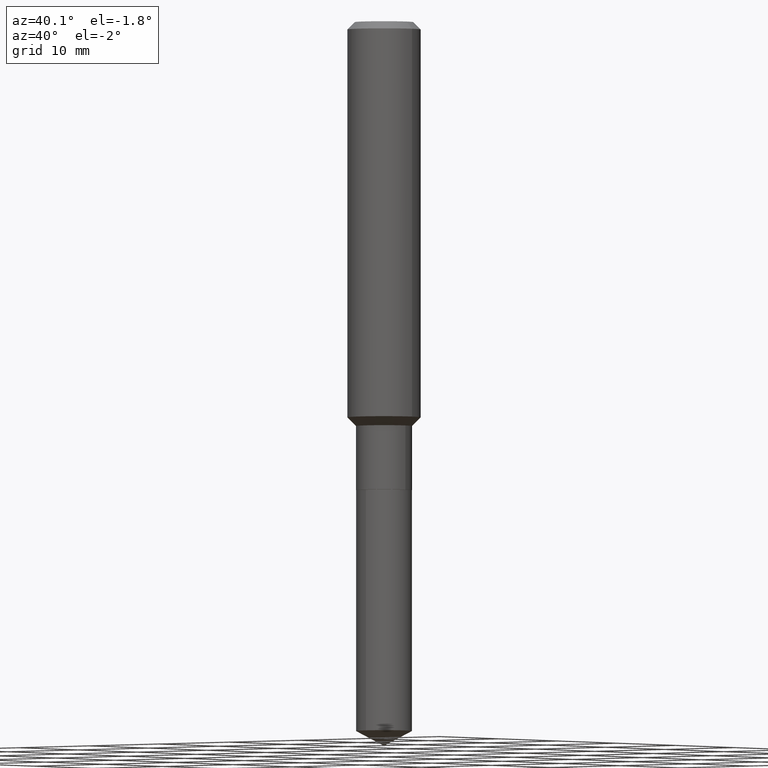
[diagram: clean part render]
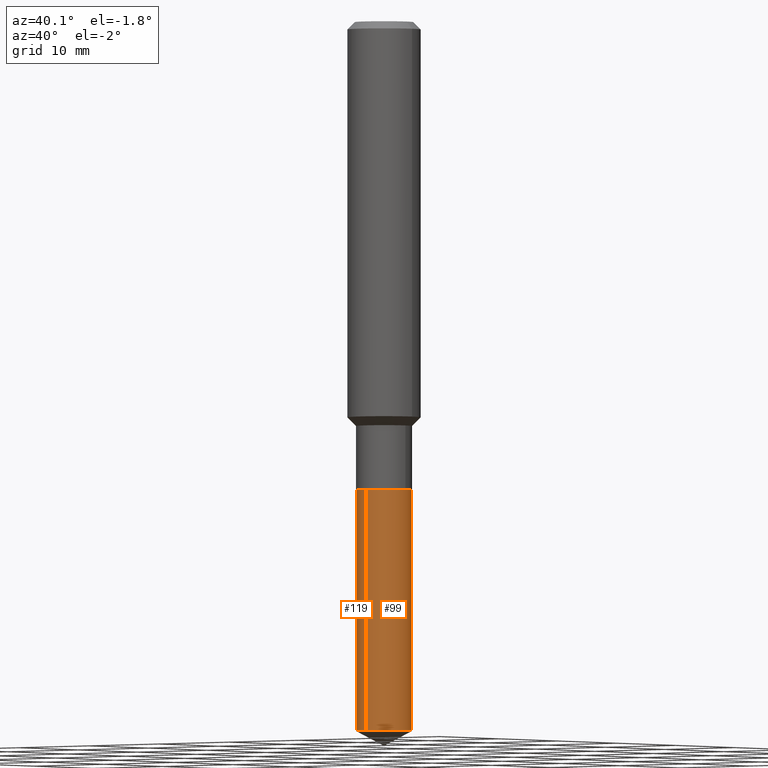
[diagram: same view with one multi-face feature highlighted, each face labeled with its STEP entity id]
A machine part, auxiliary view. The highlighted faces form ONE feature: a constant-radius fillet chain: 2 tangent blend faces with common blend radius 3.0505 mm. The faces share edges in the B-rep.
Their STEP definitions:
[1] entity #99 (Cylinder):
#3 = LINE ( 'NONE', #162, #369 ) ;
#31 = CIRCLE ( 'NONE', #301, 0.1200999999999999984 ) ;
#37 = DIRECTION ( 'NONE',  ( -2.445582076561770869E-29, 3.491319129216855831E-15, 1.000000000000000000 ) ) ;
#47 = ORIENTED_EDGE ( 'NONE', *, *, #134, .T. ) ;
#58 = VERTEX_POINT ( 'NONE', #446 ) ;
#75 = LINE ( 'NONE', #155, #349 ) ;
#81 = EDGE_LOOP ( 'NONE', ( #206, #47, #94, #464 ) ) ;
#88 = EDGE_CURVE ( 'NONE', #58, #282, #169, .T. ) ;
#94 = ORIENTED_EDGE ( 'NONE', *, *, #88, .F. ) ;
#99 = ADVANCED_FACE ( 'NONE', ( #120 ), #234, .T. ) ;
#107 = DIRECTION ( 'NONE',  ( -2.445582076561770869E-29, 3.491319129216855831E-15, 1.000000000000000000 ) ) ;
#120 = FACE_OUTER_BOUND ( 'NONE', #81, .T. ) ;
#134 = EDGE_CURVE ( 'NONE', #428, #282, #75, .T. ) ;
#140 = CARTESIAN_POINT ( 'NONE',  ( 7.449850776551887976E-29, -1.063607737509207381E-14, -3.046341697257457071 ) ) ;
#148 = EDGE_CURVE ( 'NONE', #252, #428, #31, .T. ) ;
#155 = CARTESIAN_POINT ( 'NONE',  ( 8.533618256479295172E-16, 0.1200999999999929901, -2.011800000000000477 ) ) ;
#159 = DIRECTION ( 'NONE',  ( -2.445582076561770869E-29, 3.491319129216855831E-15, 1.000000000000000000 ) ) ;
#162 = CARTESIAN_POINT ( 'NONE',  ( -8.386538175900712832E-16, -0.1201000000000070206, -2.011799999999999589 ) ) ;
#169 = CIRCLE ( 'NONE', #299, 0.1200999999999999984 ) ;
#206 = ORIENTED_EDGE ( 'NONE', *, *, #148, .T. ) ;
#212 = CARTESIAN_POINT ( 'NONE',  ( -8.386538175900460396E-16, -0.1201000000000106288, -3.046341697257456627 ) ) ;
#234 = CYLINDRICAL_SURFACE ( 'NONE', #273, 0.1200999999999999984 ) ;
#252 = VERTEX_POINT ( 'NONE', #212 ) ;
#253 = CARTESIAN_POINT ( 'NONE',  ( 8.533618256479545636E-16, 0.1200999999999893680, -3.046341697257457515 ) ) ;
#254 = DIRECTION ( 'NONE',  ( -6.982962677686265922E-15, -1.000000000000000000, 4.549288915344318469E-15 ) ) ;
#273 = AXIS2_PLACEMENT_3D ( 'NONE', #378, #37, #490 ) ;
#282 = VERTEX_POINT ( 'NONE', #408 ) ;
#299 = AXIS2_PLACEMENT_3D ( 'NONE', #337, #487, #448 ) ;
#301 = AXIS2_PLACEMENT_3D ( 'NONE', #140, #107, #254 ) ;
#337 = CARTESIAN_POINT ( 'NONE',  ( 4.919794144283257815E-29, -7.024162157484641016E-15, -2.011800000000000033 ) ) ;
#340 = EDGE_CURVE ( 'NONE', #252, #58, #3, .T. ) ;
#349 = VECTOR ( 'NONE', #159, 39.37007874015748143 ) ;
#369 = VECTOR ( 'NONE', #420, 39.37007874015748143 ) ;
#378 = CARTESIAN_POINT ( 'NONE',  ( 4.919794144283257815E-29, -7.024162157484641016E-15, -2.011800000000000033 ) ) ;
#408 = CARTESIAN_POINT ( 'NONE',  ( 8.533618256479549580E-16, 0.1200999999999929901, -2.011800000000000477 ) ) ;
#420 = DIRECTION ( 'NONE',  ( -2.445582076561770869E-29, 3.491319129216855831E-15, 1.000000000000000000 ) ) ;
#428 = VERTEX_POINT ( 'NONE', #253 ) ;
#446 = CARTESIAN_POINT ( 'NONE',  ( -8.386538175900712832E-16, -0.1201000000000070206, -2.011799999999999589 ) ) ;
#448 = DIRECTION ( 'NONE',  ( -6.982962677686265922E-15, -1.000000000000000000, 4.549288915344318469E-15 ) ) ;
#464 = ORIENTED_EDGE ( 'NONE', *, *, #340, .F. ) ;
#487 = DIRECTION ( 'NONE',  ( -2.445582076561770869E-29, 3.491319129216855831E-15, 1.000000000000000000 ) ) ;
#490 = DIRECTION ( 'NONE',  ( -6.982962677686265922E-15, -1.000000000000000000, 4.549288915344318469E-15 ) ) ;
[2] entity #119 (Cylinder):
#3 = LINE ( 'NONE', #162, #369 ) ;
#11 = CIRCLE ( 'NONE', #453, 0.1200999999999999984 ) ;
#22 = EDGE_LOOP ( 'NONE', ( #458, #360, #288, #272 ) ) ;
#30 = CARTESIAN_POINT ( 'NONE',  ( 4.919794144283257815E-29, -7.024162157484641016E-15, -2.011800000000000033 ) ) ;
#46 = DIRECTION ( 'NONE',  ( -2.445582076561770869E-29, 3.491319129216855831E-15, 1.000000000000000000 ) ) ;
#55 = CARTESIAN_POINT ( 'NONE',  ( 4.919794144283257815E-29, -7.024162157484641016E-15, -2.011800000000000033 ) ) ;
#58 = VERTEX_POINT ( 'NONE', #446 ) ;
#71 = DIRECTION ( 'NONE',  ( -2.445582076561770869E-29, 3.491319129216855831E-15, 1.000000000000000000 ) ) ;
#75 = LINE ( 'NONE', #155, #349 ) ;
#97 = CARTESIAN_POINT ( 'NONE',  ( 7.449850776551887976E-29, -1.063607737509207381E-14, -3.046341697257457071 ) ) ;
#119 = ADVANCED_FACE ( 'NONE', ( #157 ), #306, .T. ) ;
#134 = EDGE_CURVE ( 'NONE', #428, #282, #75, .T. ) ;
#155 = CARTESIAN_POINT ( 'NONE',  ( 8.533618256479295172E-16, 0.1200999999999929901, -2.011800000000000477 ) ) ;
#157 = FACE_OUTER_BOUND ( 'NONE', #22, .T. ) ;
#159 = DIRECTION ( 'NONE',  ( -2.445582076561770869E-29, 3.491319129216855831E-15, 1.000000000000000000 ) ) ;
#162 = CARTESIAN_POINT ( 'NONE',  ( -8.386538175900712832E-16, -0.1201000000000070206, -2.011799999999999589 ) ) ;
#167 = EDGE_CURVE ( 'NONE', #428, #252, #393, .T. ) ;
#177 = AXIS2_PLACEMENT_3D ( 'NONE', #55, #46, #353 ) ;
#212 = CARTESIAN_POINT ( 'NONE',  ( -8.386538175900460396E-16, -0.1201000000000106288, -3.046341697257456627 ) ) ;
#252 = VERTEX_POINT ( 'NONE', #212 ) ;
#253 = CARTESIAN_POINT ( 'NONE',  ( 8.533618256479545636E-16, 0.1200999999999893680, -3.046341697257457515 ) ) ;
#264 = DIRECTION ( 'NONE',  ( -6.982962677686265922E-15, -1.000000000000000000, 4.549288915344318469E-15 ) ) ;
#272 = ORIENTED_EDGE ( 'NONE', *, *, #459, .F. ) ;
#282 = VERTEX_POINT ( 'NONE', #408 ) ;
#288 = ORIENTED_EDGE ( 'NONE', *, *, #340, .T. ) ;
#306 = CYLINDRICAL_SURFACE ( 'NONE', #177, 0.1200999999999999984 ) ;
#325 = DIRECTION ( 'NONE',  ( -2.445582076561770869E-29, 3.491319129216855831E-15, 1.000000000000000000 ) ) ;
#340 = EDGE_CURVE ( 'NONE', #252, #58, #3, .T. ) ;
#349 = VECTOR ( 'NONE', #159, 39.37007874015748143 ) ;
#353 = DIRECTION ( 'NONE',  ( -6.982962677686265922E-15, -1.000000000000000000, 4.549288915344318469E-15 ) ) ;
#360 = ORIENTED_EDGE ( 'NONE', *, *, #167, .T. ) ;
#369 = VECTOR ( 'NONE', #420, 39.37007874015748143 ) ;
#393 = CIRCLE ( 'NONE', #452, 0.1200999999999999984 ) ;
#408 = CARTESIAN_POINT ( 'NONE',  ( 8.533618256479549580E-16, 0.1200999999999929901, -2.011800000000000477 ) ) ;
#420 = DIRECTION ( 'NONE',  ( -2.445582076561770869E-29, 3.491319129216855831E-15, 1.000000000000000000 ) ) ;
#428 = VERTEX_POINT ( 'NONE', #253 ) ;
#446 = CARTESIAN_POINT ( 'NONE',  ( -8.386538175900712832E-16, -0.1201000000000070206, -2.011799999999999589 ) ) ;
#452 = AXIS2_PLACEMENT_3D ( 'NONE', #97, #325, #469 ) ;
#453 = AXIS2_PLACEMENT_3D ( 'NONE', #30, #71, #264 ) ;
#458 = ORIENTED_EDGE ( 'NONE', *, *, #134, .F. ) ;
#459 = EDGE_CURVE ( 'NONE', #282, #58, #11, .T. ) ;
#469 = DIRECTION ( 'NONE',  ( -6.982962677686265922E-15, -1.000000000000000000, 4.549288915344318469E-15 ) ) ;